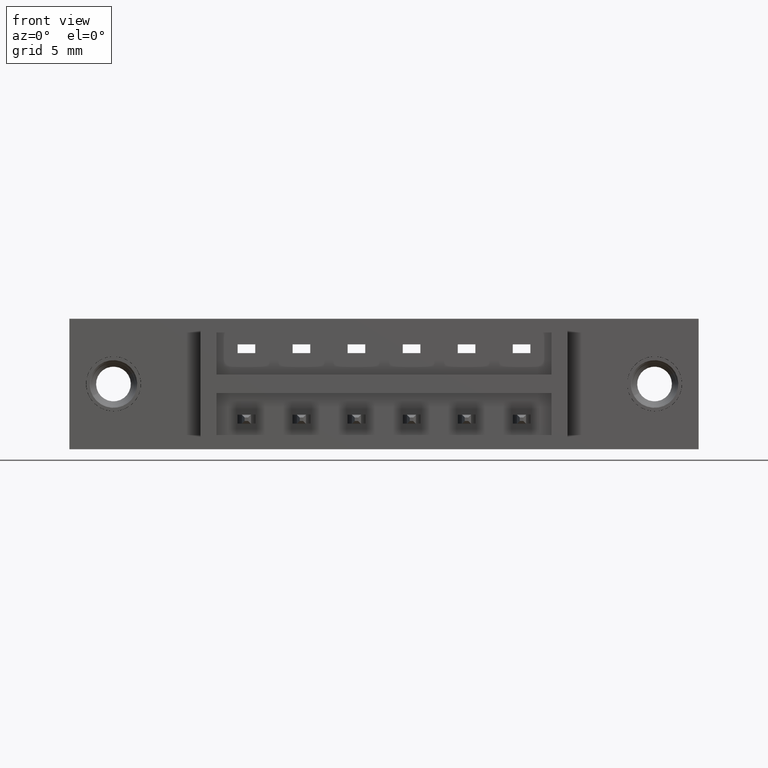
[diagram: clean part render]
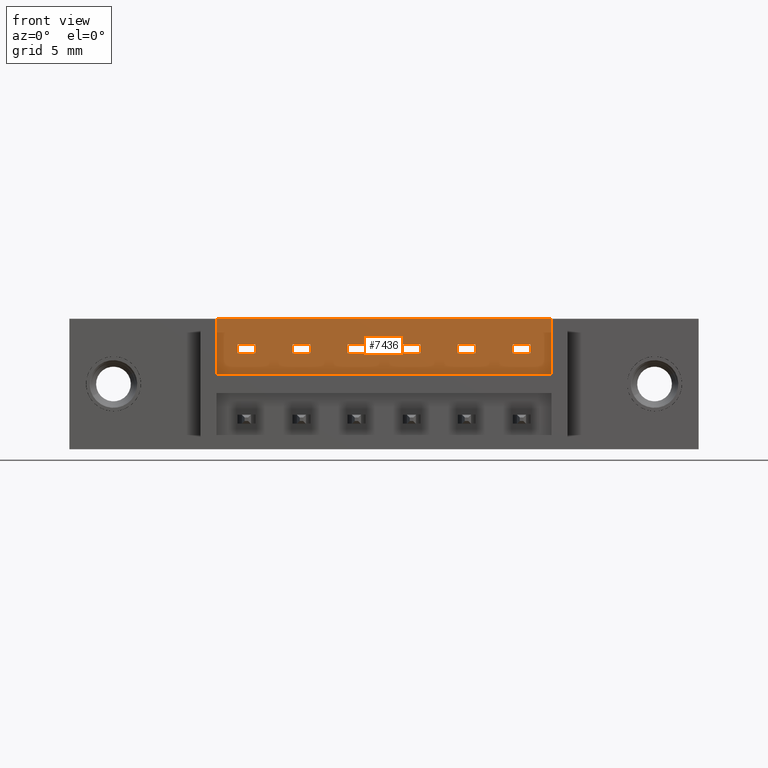
[diagram: same view with one face highlighted and labeled with its STEP entity id]
A machine part, front view. The second image highlights one B-rep face of the part: STEP entity #7436.
In plain terms, the highlighted planar face has unit normal (0, 1, 0).
Its self-contained STEP definition (entity closure, byte-faithful):
#17 = VECTOR ( 'NONE', #7426, 39.37007874015748100 ) ;
#60 = EDGE_CURVE ( 'NONE', #1805, #5110, #2518, .T. ) ;
#100 = LINE ( 'NONE', #940, #9570 ) ;
#103 = CARTESIAN_POINT ( 'NONE',  ( 1.151000000000000000, 0.04999999999999998900, -0.07250000000000002300 ) ) ;
#112 = LINE ( 'NONE', #803, #7913 ) ;
#147 = VERTEX_POINT ( 'NONE', #3185 ) ;
#226 = VERTEX_POINT ( 'NONE', #644 ) ;
#227 = CARTESIAN_POINT ( 'NONE',  ( 1.101000000000000000, 0.05000000000000001000, -0.09750000000000005900 ) ) ;
#250 = CARTESIAN_POINT ( 'NONE',  ( 0.4769999999999999200, 0.04999999999999998900, -0.07250000000000002300 ) ) ;
#266 = VECTOR ( 'NONE', #1882, 39.37007874015748100 ) ;
#470 = DIRECTION ( 'NONE',  ( 0.0000000000000000000, -0.0000000000000000000, 1.000000000000000000 ) ) ;
#507 = DIRECTION ( 'NONE',  ( 0.0000000000000000000, 0.0000000000000000000, 1.000000000000000000 ) ) ;
#542 = EDGE_LOOP ( 'NONE', ( #6218, #705, #979, #2528 ) ) ;
#573 = EDGE_CURVE ( 'NONE', #1708, #1805, #1553, .T. ) ;
#623 = CARTESIAN_POINT ( 'NONE',  ( 0.9449999999999998400, 0.05000000000000000300, 0.0000000000000000000 ) ) ;
#626 = CARTESIAN_POINT ( 'NONE',  ( 0.4174999999999999800, 0.05000000000000000300, 0.0000000000000000000 ) ) ;
#644 = CARTESIAN_POINT ( 'NONE',  ( 0.8389999999999998600, 0.05000000000000000300, -0.09750000000000011400 ) ) ;
#705 = ORIENTED_EDGE ( 'NONE', *, *, #7721, .T. ) ;
#803 = CARTESIAN_POINT ( 'NONE',  ( 1.306999999999999700, 0.05000000000000000300, 0.0000000000000000000 ) ) ;
#812 = DIRECTION ( 'NONE',  ( 0.0000000000000000000, 0.0000000000000000000, 1.000000000000000000 ) ) ;
#887 = DIRECTION ( 'NONE',  ( -1.000000000000000000, 0.0000000000000000000, 0.0000000000000000000 ) ) ;
#940 = CARTESIAN_POINT ( 'NONE',  ( 1.366499999999999800, 0.05000000000000000300, -0.09750000000000005900 ) ) ;
#978 = LINE ( 'NONE', #6998, #6775 ) ;
#979 = ORIENTED_EDGE ( 'NONE', *, *, #7345, .T. ) ;
#1083 = EDGE_CURVE ( 'NONE', #5815, #4640, #4833, .T. ) ;
#1088 = EDGE_CURVE ( 'NONE', #8752, #147, #6616, .T. ) ;
#1090 = VECTOR ( 'NONE', #507, 39.37007874015748100 ) ;
#1107 = CARTESIAN_POINT ( 'NONE',  ( 1.366499999999999800, 0.05000000000000000300, -0.07250000000000002300 ) ) ;
#1115 = CARTESIAN_POINT ( 'NONE',  ( 1.366499999999999800, 0.05000000000000000300, -0.09750000000000005900 ) ) ;
#1137 = CARTESIAN_POINT ( 'NONE',  ( 0.7889999999999998100, 0.04999999999999998900, -0.07250000000000002300 ) ) ;
#1194 = VECTOR ( 'NONE', #5070, 39.37007874015748100 ) ;
#1215 = EDGE_CURVE ( 'NONE', #1594, #1958, #100, .T. ) ;
#1296 = VECTOR ( 'NONE', #5040, 39.37007874015748100 ) ;
#1303 = CARTESIAN_POINT ( 'NONE',  ( 1.306999999999999700, 0.04999999999999998900, -0.07250000000000002300 ) ) ;
#1332 = FACE_BOUND ( 'NONE', #542, .T. ) ;
#1349 = CARTESIAN_POINT ( 'NONE',  ( 1.256999999999999700, 0.05000000000000001000, -0.09750000000000005900 ) ) ;
#1429 = CARTESIAN_POINT ( 'NONE',  ( 0.5269999999999999100, 0.04999999999999998900, -0.07250000000000002300 ) ) ;
#1434 = DIRECTION ( 'NONE',  ( -1.000000000000000000, 0.0000000000000000000, 0.0000000000000000000 ) ) ;
#1450 = VERTEX_POINT ( 'NONE', #1429 ) ;
#1460 = ORIENTED_EDGE ( 'NONE', *, *, #8216, .T. ) ;
#1483 = CARTESIAN_POINT ( 'NONE',  ( 1.306999999999999700, 0.05000000000000000300, -0.09750000000000011400 ) ) ;
#1493 = CARTESIAN_POINT ( 'NONE',  ( 1.366499999999999800, 0.05000000000000000300, -0.07250000000000002300 ) ) ;
#1515 = DIRECTION ( 'NONE',  ( 1.000000000000000000, 0.0000000000000000000, 0.0000000000000000000 ) ) ;
#1553 = LINE ( 'NONE', #3682, #5316 ) ;
#1554 = LINE ( 'NONE', #1493, #8821 ) ;
#1570 = ORIENTED_EDGE ( 'NONE', *, *, #3848, .T. ) ;
#1578 = FACE_BOUND ( 'NONE', #4269, .T. ) ;
#1586 = VERTEX_POINT ( 'NONE', #2755 ) ;
#1594 = VERTEX_POINT ( 'NONE', #8859 ) ;
#1612 = DIRECTION ( 'NONE',  ( -1.000000000000000000, 0.0000000000000000000, 0.0000000000000000000 ) ) ;
#1708 = VERTEX_POINT ( 'NONE', #9141 ) ;
#1716 = EDGE_CURVE ( 'NONE', #3458, #5815, #7309, .T. ) ;
#1729 = ORIENTED_EDGE ( 'NONE', *, *, #4481, .T. ) ;
#1805 = VERTEX_POINT ( 'NONE', #7439 ) ;
#1816 = FACE_BOUND ( 'NONE', #5370, .T. ) ;
#1882 = DIRECTION ( 'NONE',  ( 1.000000000000000000, 0.0000000000000000000, 0.0000000000000000000 ) ) ;
#1887 = VERTEX_POINT ( 'NONE', #2183 ) ;
#1936 = VERTEX_POINT ( 'NONE', #1303 ) ;
#1958 = VERTEX_POINT ( 'NONE', #227 ) ;
#1964 = DIRECTION ( 'NONE',  ( 0.0000000000000000000, 0.0000000000000000000, 1.000000000000000000 ) ) ;
#2032 = LINE ( 'NONE', #623, #17 ) ;
#2074 = LINE ( 'NONE', #4309, #3821 ) ;
#2144 = DIRECTION ( 'NONE',  ( -1.000000000000000000, -0.0000000000000000000, -0.0000000000000000000 ) ) ;
#2183 = CARTESIAN_POINT ( 'NONE',  ( 0.9949999999999998800, 0.05000000000000000300, -0.09750000000000011400 ) ) ;
#2192 = DIRECTION ( 'NONE',  ( 1.000000000000000000, 0.0000000000000000000, 0.0000000000000000000 ) ) ;
#2195 = VERTEX_POINT ( 'NONE', #8856 ) ;
#2237 = DIRECTION ( 'NONE',  ( -0.0000000000000000000, -0.0000000000000000000, -1.000000000000000000 ) ) ;
#2320 = ORIENTED_EDGE ( 'NONE', *, *, #573, .T. ) ;
#2351 = EDGE_LOOP ( 'NONE', ( #6341, #2320, #7082, #8253 ) ) ;
#2386 = CARTESIAN_POINT ( 'NONE',  ( 1.366499999999999800, 0.05000000000000000300, -0.09750000000000005900 ) ) ;
#2430 = EDGE_CURVE ( 'NONE', #7369, #9332, #8917, .T. ) ;
#2492 = CARTESIAN_POINT ( 'NONE',  ( 1.366499999999999800, 0.05000000000000000300, -0.07250000000000002300 ) ) ;
#2518 = LINE ( 'NONE', #7174, #8256 ) ;
#2528 = ORIENTED_EDGE ( 'NONE', *, *, #4941, .F. ) ;
#2561 = VERTEX_POINT ( 'NONE', #4195 ) ;
#2649 = CARTESIAN_POINT ( 'NONE',  ( 0.4174999999999999800, 0.05000000000000000300, -0.1585000000000000300 ) ) ;
#2692 = DIRECTION ( 'NONE',  ( 1.000000000000000000, 0.0000000000000000000, 0.0000000000000000000 ) ) ;
#2724 = CARTESIAN_POINT ( 'NONE',  ( 1.366499999999999800, 0.05000000000000000300, -0.07250000000000002300 ) ) ;
#2755 = CARTESIAN_POINT ( 'NONE',  ( 0.6829999999999999400, 0.05000000000000000300, -0.09750000000000011400 ) ) ;
#2756 = VECTOR ( 'NONE', #4815, 39.37007874015748100 ) ;
#2768 = VECTOR ( 'NONE', #9036, 39.37007874015748100 ) ;
#2851 = VECTOR ( 'NONE', #2144, 39.37007874015748100 ) ;
#2902 = EDGE_LOOP ( 'NONE', ( #3291, #5014, #6439, #4604 ) ) ;
#2968 = LINE ( 'NONE', #7123, #8684 ) ;
#3126 = LINE ( 'NONE', #6534, #1090 ) ;
#3147 = LINE ( 'NONE', #5215, #5127 ) ;
#3185 = CARTESIAN_POINT ( 'NONE',  ( 0.9949999999999998800, 0.04999999999999998900, -0.07250000000000002300 ) ) ;
#3237 = LINE ( 'NONE', #4548, #2768 ) ;
#3291 = ORIENTED_EDGE ( 'NONE', *, *, #1716, .T. ) ;
#3318 = LINE ( 'NONE', #6932, #1296 ) ;
#3351 = FACE_BOUND ( 'NONE', #2351, .T. ) ;
#3367 = DIRECTION ( 'NONE',  ( -1.000000000000000000, 0.0000000000000000000, 0.0000000000000000000 ) ) ;
#3428 = EDGE_CURVE ( 'NONE', #1594, #6109, #978, .T. ) ;
#3458 = VERTEX_POINT ( 'NONE', #6849 ) ;
#3497 = PLANE ( 'NONE',  #5686 ) ;
#3536 = CARTESIAN_POINT ( 'NONE',  ( 0.7889999999999998100, 0.05000000000000000300, 0.0000000000000000000 ) ) ;
#3594 = ORIENTED_EDGE ( 'NONE', *, *, #3732, .T. ) ;
#3627 = LINE ( 'NONE', #2386, #7176 ) ;
#3639 = ORIENTED_EDGE ( 'NONE', *, *, #5698, .T. ) ;
#3677 = VECTOR ( 'NONE', #5315, 39.37007874015748100 ) ;
#3682 = CARTESIAN_POINT ( 'NONE',  ( 0.6329999999999999000, 0.05000000000000000300, 0.0000000000000000000 ) ) ;
#3732 = EDGE_CURVE ( 'NONE', #6008, #5508, #7931, .T. ) ;
#3746 = EDGE_CURVE ( 'NONE', #1887, #147, #9605, .T. ) ;
#3821 = VECTOR ( 'NONE', #8807, 39.37007874015748100 ) ;
#3834 = EDGE_CURVE ( 'NONE', #226, #6551, #8954, .T. ) ;
#3848 = EDGE_CURVE ( 'NONE', #5508, #8950, #8720, .T. ) ;
#4195 = CARTESIAN_POINT ( 'NONE',  ( 0.9449999999999998400, 0.05000000000000001000, -0.09750000000000005900 ) ) ;
#4211 = CARTESIAN_POINT ( 'NONE',  ( 1.366499999999999800, 0.05000000000000000300, 0.0000000000000000000 ) ) ;
#4229 = CARTESIAN_POINT ( 'NONE',  ( 0.4769999999999999200, 0.05000000000000001000, -0.09750000000000005900 ) ) ;
#4269 = EDGE_LOOP ( 'NONE', ( #5404, #1460, #8723, #4307 ) ) ;
#4280 = EDGE_CURVE ( 'NONE', #2195, #6109, #5203, .T. ) ;
#4307 = ORIENTED_EDGE ( 'NONE', *, *, #3746, .F. ) ;
#4309 = CARTESIAN_POINT ( 'NONE',  ( 0.4174999999999999800, 0.05000000000000000300, -0.1585000000000000300 ) ) ;
#4425 = DIRECTION ( 'NONE',  ( 0.0000000000000000000, 0.0000000000000000000, 1.000000000000000000 ) ) ;
#4481 = EDGE_CURVE ( 'NONE', #8950, #1936, #1554, .T. ) ;
#4543 = EDGE_CURVE ( 'NONE', #1887, #2561, #6866, .T. ) ;
#4548 = CARTESIAN_POINT ( 'NONE',  ( 0.4769999999999998700, 0.05000000000000000300, 0.0000000000000000000 ) ) ;
#4576 = VECTOR ( 'NONE', #2192, 39.37007874015748100 ) ;
#4586 = VECTOR ( 'NONE', #1434, 39.37007874015748100 ) ;
#4604 = ORIENTED_EDGE ( 'NONE', *, *, #6539, .T. ) ;
#4608 = EDGE_CURVE ( 'NONE', #6008, #1936, #112, .T. ) ;
#4640 = VERTEX_POINT ( 'NONE', #626 ) ;
#4815 = DIRECTION ( 'NONE',  ( 0.0000000000000000000, 0.0000000000000000000, 1.000000000000000000 ) ) ;
#4833 = LINE ( 'NONE', #5414, #2851 ) ;
#4838 = CARTESIAN_POINT ( 'NONE',  ( 1.256999999999999700, 0.05000000000000000300, 0.0000000000000000000 ) ) ;
#4873 = CARTESIAN_POINT ( 'NONE',  ( 1.366499999999999800, 0.05000000000000000300, -0.09750000000000005900 ) ) ;
#4908 = ORIENTED_EDGE ( 'NONE', *, *, #3428, .F. ) ;
#4921 = VERTEX_POINT ( 'NONE', #8100 ) ;
#4941 = EDGE_CURVE ( 'NONE', #4921, #1450, #3318, .T. ) ;
#4967 = VECTOR ( 'NONE', #2692, 39.37007874015748100 ) ;
#4968 = CARTESIAN_POINT ( 'NONE',  ( 1.366499999999999800, 0.05000000000000000300, 0.0000000000000000000 ) ) ;
#5006 = DIRECTION ( 'NONE',  ( 0.0000000000000000000, 1.000000000000000000, 0.0000000000000000000 ) ) ;
#5014 = ORIENTED_EDGE ( 'NONE', *, *, #1083, .T. ) ;
#5030 = ORIENTED_EDGE ( 'NONE', *, *, #8086, .F. ) ;
#5040 = DIRECTION ( 'NONE',  ( 0.0000000000000000000, 0.0000000000000000000, 1.000000000000000000 ) ) ;
#5070 = DIRECTION ( 'NONE',  ( -1.000000000000000000, 0.0000000000000000000, 0.0000000000000000000 ) ) ;
#5099 = ORIENTED_EDGE ( 'NONE', *, *, #2430, .T. ) ;
#5110 = VERTEX_POINT ( 'NONE', #8799 ) ;
#5125 = ORIENTED_EDGE ( 'NONE', *, *, #7019, .T. ) ;
#5127 = VECTOR ( 'NONE', #2237, 39.37007874015748100 ) ;
#5203 = LINE ( 'NONE', #2724, #4967 ) ;
#5215 = CARTESIAN_POINT ( 'NONE',  ( 0.4174999999999999800, 0.05000000000000000300, -0.1585000000000000300 ) ) ;
#5257 = VERTEX_POINT ( 'NONE', #4229 ) ;
#5261 = VERTEX_POINT ( 'NONE', #250 ) ;
#5315 = DIRECTION ( 'NONE',  ( 0.0000000000000000000, 0.0000000000000000000, 1.000000000000000000 ) ) ;
#5316 = VECTOR ( 'NONE', #4425, 39.37007874015748100 ) ;
#5348 = FACE_BOUND ( 'NONE', #8030, .T. ) ;
#5356 = CARTESIAN_POINT ( 'NONE',  ( 0.9949999999999998800, 0.05000000000000000300, 0.0000000000000000000 ) ) ;
#5361 = VECTOR ( 'NONE', #8043, 39.37007874015748100 ) ;
#5370 = EDGE_LOOP ( 'NONE', ( #6799, #3639, #6760, #4908 ) ) ;
#5404 = ORIENTED_EDGE ( 'NONE', *, *, #4543, .T. ) ;
#5414 = CARTESIAN_POINT ( 'NONE',  ( 0.4174999999999999800, 0.05000000000000000300, 0.0000000000000000000 ) ) ;
#5508 = VERTEX_POINT ( 'NONE', #1349 ) ;
#5524 = DIRECTION ( 'NONE',  ( 1.000000000000000000, 0.0000000000000000000, 0.0000000000000000000 ) ) ;
#5534 = CARTESIAN_POINT ( 'NONE',  ( 1.366499999999999800, 0.05000000000000000300, -0.09750000000000005900 ) ) ;
#5553 = CARTESIAN_POINT ( 'NONE',  ( 1.366499999999999800, 0.05000000000000000300, -0.07250000000000002300 ) ) ;
#5635 = EDGE_LOOP ( 'NONE', ( #7499, #5125, #5099, #5030 ) ) ;
#5686 = AXIS2_PLACEMENT_3D ( 'NONE', #4211, #5006, #470 ) ;
#5698 = EDGE_CURVE ( 'NONE', #1958, #2195, #2968, .T. ) ;
#5815 = VERTEX_POINT ( 'NONE', #4968 ) ;
#5945 = VECTOR ( 'NONE', #3367, 39.37007874015748100 ) ;
#6008 = VERTEX_POINT ( 'NONE', #1483 ) ;
#6096 = EDGE_CURVE ( 'NONE', #4921, #5257, #3627, .T. ) ;
#6109 = VERTEX_POINT ( 'NONE', #103 ) ;
#6218 = ORIENTED_EDGE ( 'NONE', *, *, #6096, .T. ) ;
#6341 = ORIENTED_EDGE ( 'NONE', *, *, #9645, .T. ) ;
#6439 = ORIENTED_EDGE ( 'NONE', *, *, #6648, .T. ) ;
#6490 = CARTESIAN_POINT ( 'NONE',  ( 0.8389999999999998600, 0.05000000000000000300, 0.0000000000000000000 ) ) ;
#6496 = DIRECTION ( 'NONE',  ( -1.000000000000000000, 0.0000000000000000000, 0.0000000000000000000 ) ) ;
#6534 = CARTESIAN_POINT ( 'NONE',  ( 0.6829999999999999400, 0.05000000000000000300, 0.0000000000000000000 ) ) ;
#6539 = EDGE_CURVE ( 'NONE', #7350, #3458, #2074, .T. ) ;
#6545 = LINE ( 'NONE', #1107, #266 ) ;
#6551 = VERTEX_POINT ( 'NONE', #7367 ) ;
#6616 = LINE ( 'NONE', #2492, #4576 ) ;
#6648 = EDGE_CURVE ( 'NONE', #4640, #7350, #3147, .T. ) ;
#6760 = ORIENTED_EDGE ( 'NONE', *, *, #4280, .T. ) ;
#6775 = VECTOR ( 'NONE', #6939, 39.37007874015748100 ) ;
#6799 = ORIENTED_EDGE ( 'NONE', *, *, #1215, .T. ) ;
#6849 = CARTESIAN_POINT ( 'NONE',  ( 1.366499999999999800, 0.05000000000000000300, -0.1585000000000000300 ) ) ;
#6863 = CARTESIAN_POINT ( 'NONE',  ( 0.8389999999999998600, 0.04999999999999998900, -0.07250000000000002300 ) ) ;
#6866 = LINE ( 'NONE', #1115, #4586 ) ;
#6932 = CARTESIAN_POINT ( 'NONE',  ( 0.5269999999999999100, 0.05000000000000000300, 0.0000000000000000000 ) ) ;
#6939 = DIRECTION ( 'NONE',  ( 0.0000000000000000000, 0.0000000000000000000, 1.000000000000000000 ) ) ;
#6998 = CARTESIAN_POINT ( 'NONE',  ( 1.151000000000000000, 0.05000000000000000300, 0.0000000000000000000 ) ) ;
#7019 = EDGE_CURVE ( 'NONE', #6551, #7369, #9303, .T. ) ;
#7082 = ORIENTED_EDGE ( 'NONE', *, *, #60, .T. ) ;
#7123 = CARTESIAN_POINT ( 'NONE',  ( 1.101000000000000000, 0.05000000000000000300, 0.0000000000000000000 ) ) ;
#7174 = CARTESIAN_POINT ( 'NONE',  ( 1.366499999999999800, 0.05000000000000000300, -0.07250000000000002300 ) ) ;
#7176 = VECTOR ( 'NONE', #1612, 39.37007874015748100 ) ;
#7184 = VECTOR ( 'NONE', #5524, 39.37007874015748100 ) ;
#7187 = VECTOR ( 'NONE', #6496, 39.37007874015748100 ) ;
#7309 = LINE ( 'NONE', #8419, #9479 ) ;
#7345 = EDGE_CURVE ( 'NONE', #5261, #1450, #6545, .T. ) ;
#7350 = VERTEX_POINT ( 'NONE', #2649 ) ;
#7353 = FACE_BOUND ( 'NONE', #5635, .T. ) ;
#7367 = CARTESIAN_POINT ( 'NONE',  ( 0.7889999999999998100, 0.05000000000000001000, -0.09750000000000005900 ) ) ;
#7369 = VERTEX_POINT ( 'NONE', #1137 ) ;
#7426 = DIRECTION ( 'NONE',  ( 0.0000000000000000000, 0.0000000000000000000, 1.000000000000000000 ) ) ;
#7436 = ADVANCED_FACE ( 'NONE', ( #5348, #1816, #1578, #7353, #3351, #1332, #9073 ), #3497, .F. ) ;
#7439 = CARTESIAN_POINT ( 'NONE',  ( 0.6329999999999999000, 0.04999999999999998900, -0.07250000000000002300 ) ) ;
#7459 = LINE ( 'NONE', #6490, #9392 ) ;
#7467 = EDGE_CURVE ( 'NONE', #1586, #5110, #3126, .T. ) ;
#7499 = ORIENTED_EDGE ( 'NONE', *, *, #3834, .T. ) ;
#7658 = LINE ( 'NONE', #7989, #7187 ) ;
#7721 = EDGE_CURVE ( 'NONE', #5257, #5261, #3237, .T. ) ;
#7770 = CARTESIAN_POINT ( 'NONE',  ( 1.256999999999999700, 0.04999999999999998900, -0.07250000000000002300 ) ) ;
#7880 = DIRECTION ( 'NONE',  ( 0.0000000000000000000, 0.0000000000000000000, 1.000000000000000000 ) ) ;
#7913 = VECTOR ( 'NONE', #812, 39.37007874015748100 ) ;
#7931 = LINE ( 'NONE', #5534, #5945 ) ;
#7989 = CARTESIAN_POINT ( 'NONE',  ( 1.366499999999999800, 0.05000000000000000300, -0.09750000000000005900 ) ) ;
#8030 = EDGE_LOOP ( 'NONE', ( #3594, #1570, #1729, #8769 ) ) ;
#8043 = DIRECTION ( 'NONE',  ( 0.0000000000000000000, 0.0000000000000000000, 1.000000000000000000 ) ) ;
#8086 = EDGE_CURVE ( 'NONE', #226, #9332, #7459, .T. ) ;
#8100 = CARTESIAN_POINT ( 'NONE',  ( 0.5269999999999999100, 0.05000000000000000300, -0.09750000000000011400 ) ) ;
#8137 = DIRECTION ( 'NONE',  ( 1.000000000000000000, 0.0000000000000000000, 0.0000000000000000000 ) ) ;
#8216 = EDGE_CURVE ( 'NONE', #2561, #8752, #2032, .T. ) ;
#8253 = ORIENTED_EDGE ( 'NONE', *, *, #7467, .F. ) ;
#8256 = VECTOR ( 'NONE', #8137, 39.37007874015748100 ) ;
#8365 = DIRECTION ( 'NONE',  ( 0.0000000000000000000, 0.0000000000000000000, 1.000000000000000000 ) ) ;
#8419 = CARTESIAN_POINT ( 'NONE',  ( 1.366499999999999800, 0.05000000000000000300, -0.1585000000000000300 ) ) ;
#8684 = VECTOR ( 'NONE', #7880, 39.37007874015748100 ) ;
#8720 = LINE ( 'NONE', #4838, #2756 ) ;
#8723 = ORIENTED_EDGE ( 'NONE', *, *, #1088, .T. ) ;
#8752 = VERTEX_POINT ( 'NONE', #9598 ) ;
#8769 = ORIENTED_EDGE ( 'NONE', *, *, #4608, .F. ) ;
#8799 = CARTESIAN_POINT ( 'NONE',  ( 0.6829999999999999400, 0.04999999999999998900, -0.07250000000000002300 ) ) ;
#8807 = DIRECTION ( 'NONE',  ( 1.000000000000000000, 0.0000000000000000000, 0.0000000000000000000 ) ) ;
#8821 = VECTOR ( 'NONE', #1515, 39.37007874015748100 ) ;
#8856 = CARTESIAN_POINT ( 'NONE',  ( 1.101000000000000000, 0.04999999999999998900, -0.07250000000000002300 ) ) ;
#8859 = CARTESIAN_POINT ( 'NONE',  ( 1.151000000000000000, 0.05000000000000000300, -0.09750000000000011400 ) ) ;
#8917 = LINE ( 'NONE', #5553, #7184 ) ;
#8950 = VERTEX_POINT ( 'NONE', #7770 ) ;
#8954 = LINE ( 'NONE', #4873, #1194 ) ;
#9036 = DIRECTION ( 'NONE',  ( 0.0000000000000000000, 0.0000000000000000000, 1.000000000000000000 ) ) ;
#9073 = FACE_OUTER_BOUND ( 'NONE', #2902, .T. ) ;
#9141 = CARTESIAN_POINT ( 'NONE',  ( 0.6329999999999999000, 0.05000000000000001000, -0.09750000000000005900 ) ) ;
#9303 = LINE ( 'NONE', #3536, #5361 ) ;
#9332 = VERTEX_POINT ( 'NONE', #6863 ) ;
#9392 = VECTOR ( 'NONE', #1964, 39.37007874015748100 ) ;
#9479 = VECTOR ( 'NONE', #8365, 39.37007874015748100 ) ;
#9570 = VECTOR ( 'NONE', #887, 39.37007874015748100 ) ;
#9598 = CARTESIAN_POINT ( 'NONE',  ( 0.9449999999999998400, 0.04999999999999998900, -0.07250000000000002300 ) ) ;
#9605 = LINE ( 'NONE', #5356, #3677 ) ;
#9645 = EDGE_CURVE ( 'NONE', #1586, #1708, #7658, .T. ) ;